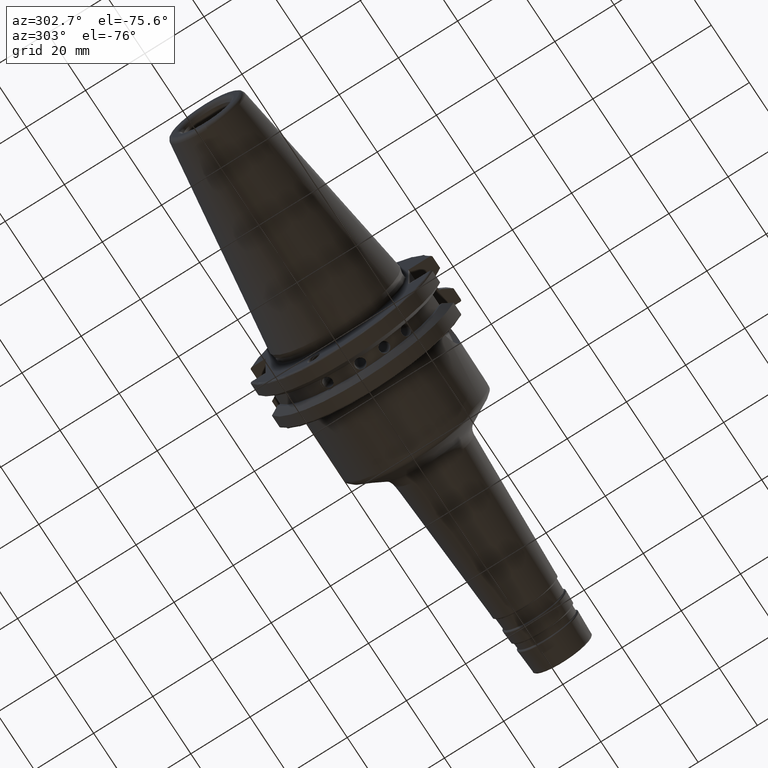
[diagram: clean part render]
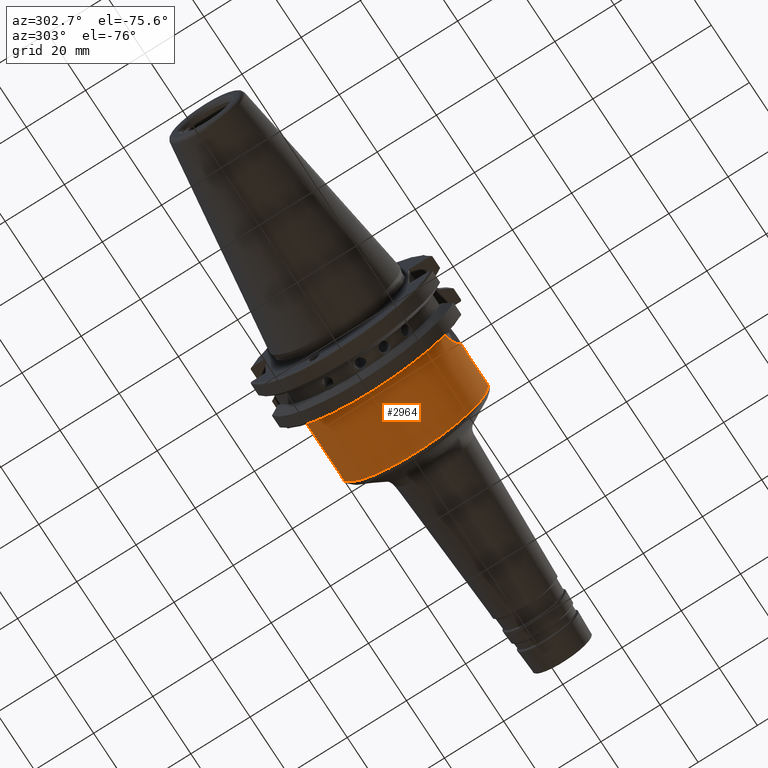
[diagram: same view with one face highlighted and labeled with its STEP entity id]
A machine part, auxiliary view. The second image highlights one B-rep face of the part: STEP entity #2964.
In plain terms, the highlighted cylindrical surface (partial cylindrical patch) has radius 24.7396 mm, axis along (1, 0, 0).
Its self-contained STEP definition (entity closure, byte-faithful):
#280=CARTESIAN_POINT('',(1.670627568403E0,0.E0,0.E0));
#281=DIRECTION('',(-1.E0,0.E0,0.E0));
#282=DIRECTION('',(0.E0,1.E0,0.E0));
#283=AXIS2_PLACEMENT_3D('',#280,#281,#282);
#285=DIRECTION('',(-9.999999999977E-1,-6.135628962540E-12,-2.125770760135E-6));
#286=VECTOR('',#285,8.816275684052E-1);
#287=CARTESIAN_POINT('',(1.670627568403E0,9.74E-1,-1.825277116445E-12));
#288=LINE('',#287,#286);
#289=CARTESIAN_POINT('',(7.89E-1,0.E0,0.E0));
#290=DIRECTION('',(1.E0,0.E0,0.E0));
#291=DIRECTION('',(0.E0,-9.445380609452E-1,-3.284019662333E-1));
#292=AXIS2_PLACEMENT_3D('',#289,#290,#291);
#294=CARTESIAN_POINT('',(1.073968503937E0,-9.74E-1,0.E0));
#295=CARTESIAN_POINT('',(1.073968503937E0,-9.74E-1,-1.891002092419E-2));
#296=CARTESIAN_POINT('',(1.070803160276E0,-9.729435987881E-1,
-5.670134547539E-2));
#297=CARTESIAN_POINT('',(1.054377052808E0,-9.676297987347E-1,
-1.160633539370E-1));
#298=CARTESIAN_POINT('',(1.028097926021E0,-9.596645467852E-1,
-1.690083318495E-1));
#299=CARTESIAN_POINT('',(9.933104010111E-1,-9.501431865174E-1,
-2.157902952186E-1));
#300=CARTESIAN_POINT('',(9.508134093669E-1,-9.401396099862E-1,
-2.554791837610E-1));
#301=CARTESIAN_POINT('',(9.016099068020E-1,-9.308556923891E-1,
-2.871428043485E-1));
#302=CARTESIAN_POINT('',(8.468016036458E-1,-9.235487408273E-1,
-3.095788844953E-1));
#303=CARTESIAN_POINT('',(8.086608066580E-1,-9.207714679430E-1,
-3.175873283943E-1));
#304=CARTESIAN_POINT('',(7.89E-1,-9.199800713606E-1,-3.198635151113E-1));
#306=DIRECTION('',(-1.E0,0.E0,-3.059354857494E-12));
#307=VECTOR('',#306,5.966590644662E-1);
#308=CARTESIAN_POINT('',(1.670627568403E0,-9.74E-1,1.825246237459E-12));
#309=LINE('',#308,#307);
#335=CARTESIAN_POINT('',(1.073968503937E0,-9.74E-1,0.E0));
#2570=CARTESIAN_POINT('',(7.89E-1,-9.199800713606E-1,-3.198635151113E-1));
#2571=CARTESIAN_POINT('',(7.89E-1,9.74E-1,0.E0));
#2572=VERTEX_POINT('',#2570);
#2573=VERTEX_POINT('',#2571);
#2584=CARTESIAN_POINT('',(1.670627568403E0,9.74E-1,0.E0));
#2585=CARTESIAN_POINT('',(1.670627568403E0,-9.74E-1,0.E0));
#2586=VERTEX_POINT('',#2584);
#2587=VERTEX_POINT('',#2585);
#2596=VERTEX_POINT('',#335);
#2948=CARTESIAN_POINT('',(0.E0,0.E0,0.E0));
#2949=DIRECTION('',(1.E0,0.E0,0.E0));
#2950=DIRECTION('',(0.E0,-1.E0,0.E0));
#2951=AXIS2_PLACEMENT_3D('',#2948,#2949,#2950);
#2952=CYLINDRICAL_SURFACE('',#2951,9.74E-1);
#2954=ORIENTED_EDGE('',*,*,#2953,.F.);
#2956=ORIENTED_EDGE('',*,*,#2955,.T.);
#2958=ORIENTED_EDGE('',*,*,#2957,.F.);
#2959=ORIENTED_EDGE('',*,*,#2932,.F.);
#2961=ORIENTED_EDGE('',*,*,#2960,.F.);
#2962=EDGE_LOOP('',(#2954,#2956,#2958,#2959,#2961));
#2963=FACE_OUTER_BOUND('',#2962,.F.);
#2964=ADVANCED_FACE('',(#2963),#2952,.T.);
#284=CIRCLE('',#283,9.74E-1);
#293=CIRCLE('',#292,9.74E-1);
#305=B_SPLINE_CURVE_WITH_KNOTS('',3,(#294,#295,#296,#297,#298,#299,#300,#301,
#302,#303,#304),.UNSPECIFIED.,.F.,.F.,(4,1,1,1,1,1,1,1,4),(0.E0,1.25E-1,2.5E-1,
3.75E-1,5.E-1,6.25E-1,7.5E-1,8.75E-1,1.E0),.UNSPECIFIED.);
#2932=EDGE_CURVE('',#2596,#2572,#305,.T.);
#2953=EDGE_CURVE('',#2586,#2587,#284,.T.);
#2955=EDGE_CURVE('',#2586,#2573,#288,.T.);
#2957=EDGE_CURVE('',#2572,#2573,#293,.T.);
#2960=EDGE_CURVE('',#2587,#2596,#309,.T.);